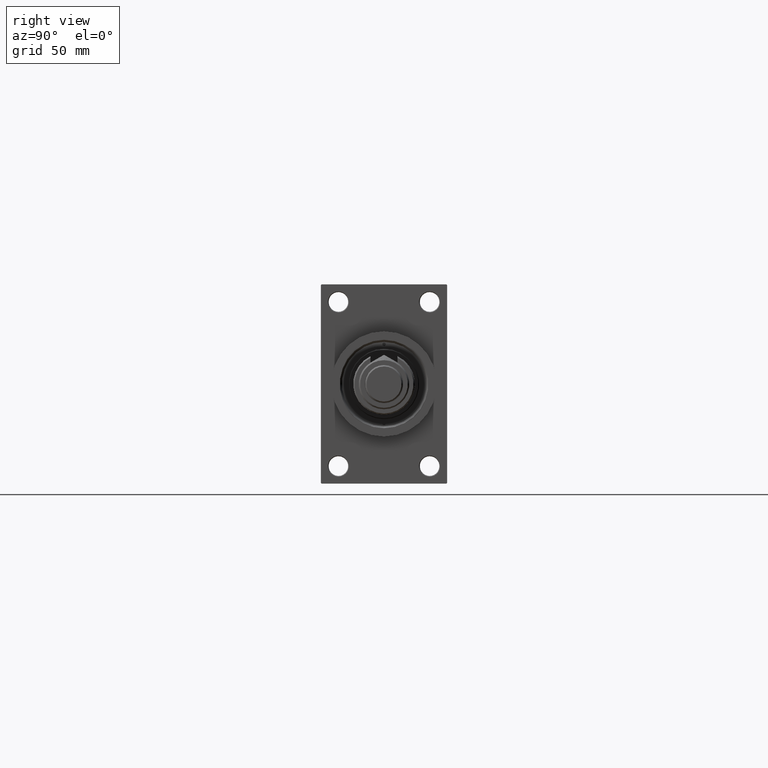
[diagram: clean part render]
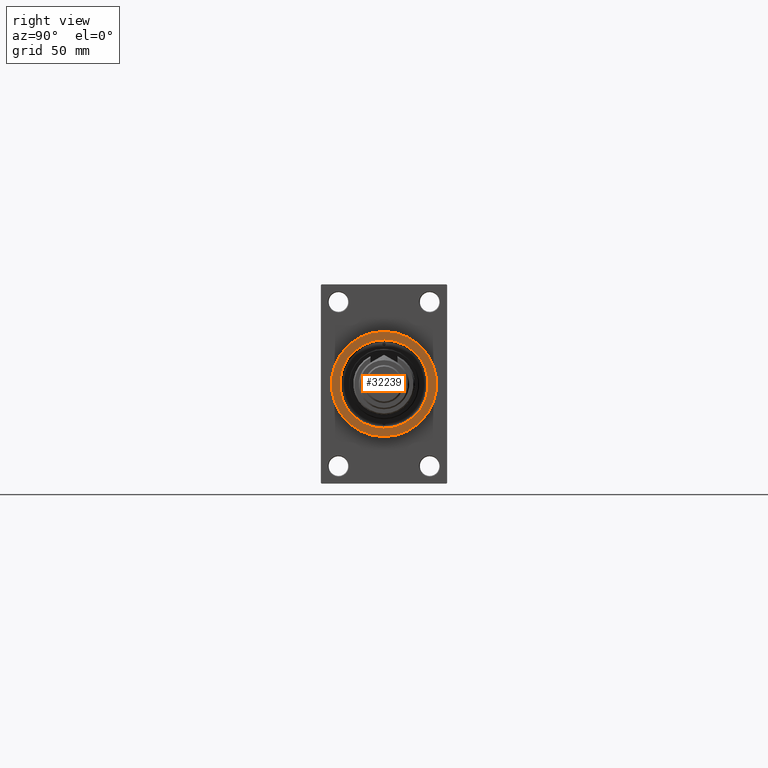
[diagram: same view with one face highlighted and labeled with its STEP entity id]
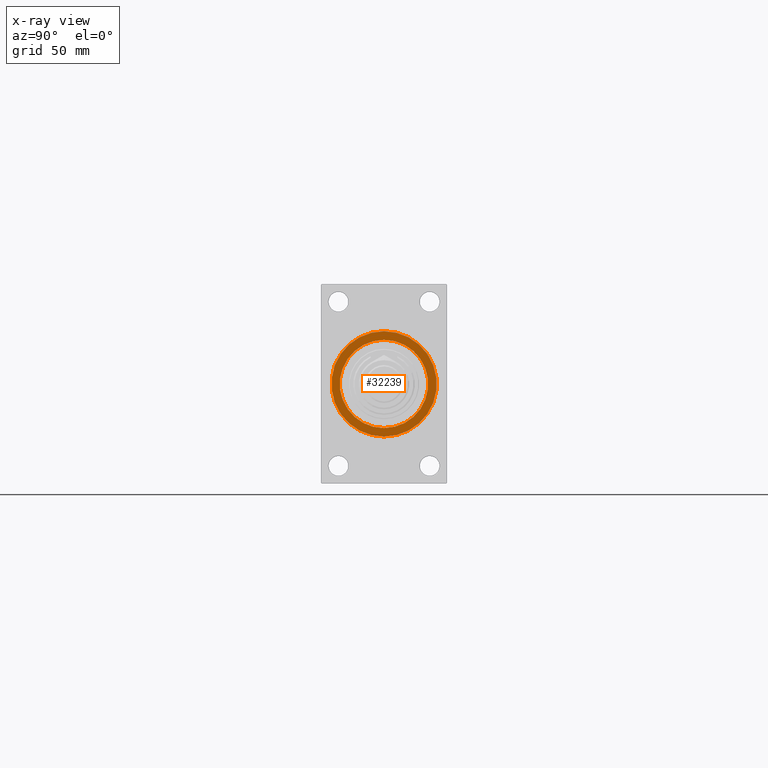
[diagram: x-ray of the same camera — body ghosted, the highlighted face saturated]
A machine part, right view. The second image highlights one B-rep face of the part: STEP entity #32239.
The next image is the same camera in x-ray: the body ghosted, the highlighted face saturated — about 0% of this face is hidden behind the body in this view.
In plain terms, the highlighted planar face has unit normal (1, 0, 0).
Its self-contained STEP definition (entity closure, byte-faithful):
#1951 = EDGE_CURVE ( 'NONE', #8072, #4314, #3866, .T. ) ;
#2128 = PLANE ( 'NONE',  #16983 ) ;
#3866 = CIRCLE ( 'NONE', #49374, 31.50000000000013856 ) ;
#4314 = VERTEX_POINT ( 'NONE', #26563 ) ;
#5264 = CARTESIAN_POINT ( 'NONE',  ( 335.9999999999999432, 0.000000000000000000, 0.000000000000000000 ) ) ;
#5580 = DIRECTION ( 'NONE',  ( 0.000000000000000000, 0.000000000000000000, -1.000000000000000000 ) ) ;
#7510 = AXIS2_PLACEMENT_3D ( 'NONE', #5264, #43459, #12641 ) ;
#8072 = VERTEX_POINT ( 'NONE', #48550 ) ;
#8746 = CARTESIAN_POINT ( 'NONE',  ( 335.9999999999999432, 0.000000000000000000, 0.000000000000000000 ) ) ;
#10629 = EDGE_LOOP ( 'NONE', ( #39286, #39818 ) ) ;
#10703 = EDGE_CURVE ( 'NONE', #4314, #8072, #42003, .T. ) ;
#12641 = DIRECTION ( 'NONE',  ( 0.000000000000000000, 0.000000000000000000, -1.000000000000000000 ) ) ;
#14564 = CARTESIAN_POINT ( 'NONE',  ( 335.9999999999999432, 0.000000000000000000, 0.000000000000000000 ) ) ;
#16457 = VERTEX_POINT ( 'NONE', #39949 ) ;
#16983 = AXIS2_PLACEMENT_3D ( 'NONE', #47949, #25284, #32934 ) ;
#17521 = DIRECTION ( 'NONE',  ( 1.000000000000000000, 0.000000000000000000, 0.000000000000000000 ) ) ;
#20170 = EDGE_LOOP ( 'NONE', ( #36446, #20592 ) ) ;
#20592 = ORIENTED_EDGE ( 'NONE', *, *, #1951, .T. ) ;
#25284 = DIRECTION ( 'NONE',  ( 1.000000000000000000, 0.000000000000000000, 0.000000000000000000 ) ) ;
#25417 = CARTESIAN_POINT ( 'NONE',  ( 335.9999999999999432, 0.000000000000000000, 0.000000000000000000 ) ) ;
#25872 = AXIS2_PLACEMENT_3D ( 'NONE', #25417, #17521, #5580 ) ;
#26563 = CARTESIAN_POINT ( 'NONE',  ( 335.9999999999999432, 0.000000000000000000, -31.50000000000013856 ) ) ;
#29812 = AXIS2_PLACEMENT_3D ( 'NONE', #8746, #36237, #35746 ) ;
#29849 = VERTEX_POINT ( 'NONE', #45661 ) ;
#32239 = ADVANCED_FACE ( 'NONE', ( #32693, #40571 ), #2128, .T. ) ;
#32693 = FACE_BOUND ( 'NONE', #20170, .T. ) ;
#32934 = DIRECTION ( 'NONE',  ( 0.000000000000000000, 0.000000000000000000, -1.000000000000000000 ) ) ;
#33799 = EDGE_CURVE ( 'NONE', #29849, #16457, #47826, .T. ) ;
#34371 = CIRCLE ( 'NONE', #7510, 37.50000000000000711 ) ;
#35746 = DIRECTION ( 'NONE',  ( 0.000000000000000000, 0.000000000000000000, -1.000000000000000000 ) ) ;
#36237 = DIRECTION ( 'NONE',  ( -1.000000000000000000, -0.000000000000000000, -0.000000000000000000 ) ) ;
#36446 = ORIENTED_EDGE ( 'NONE', *, *, #10703, .T. ) ;
#36982 = DIRECTION ( 'NONE',  ( 0.000000000000000000, 0.000000000000000000, -1.000000000000000000 ) ) ;
#39286 = ORIENTED_EDGE ( 'NONE', *, *, #43196, .T. ) ;
#39818 = ORIENTED_EDGE ( 'NONE', *, *, #33799, .T. ) ;
#39949 = CARTESIAN_POINT ( 'NONE',  ( 335.9999999999999432, 0.000000000000000000, 37.50000000000000711 ) ) ;
#40571 = FACE_OUTER_BOUND ( 'NONE', #10629, .T. ) ;
#41041 = DIRECTION ( 'NONE',  ( -1.000000000000000000, -0.000000000000000000, -0.000000000000000000 ) ) ;
#42003 = CIRCLE ( 'NONE', #29812, 31.50000000000013856 ) ;
#43196 = EDGE_CURVE ( 'NONE', #16457, #29849, #34371, .T. ) ;
#43459 = DIRECTION ( 'NONE',  ( 1.000000000000000000, 0.000000000000000000, 0.000000000000000000 ) ) ;
#45661 = CARTESIAN_POINT ( 'NONE',  ( 335.9999999999999432, 4.592425496802575156E-15, -37.50000000000000711 ) ) ;
#47826 = CIRCLE ( 'NONE', #25872, 37.50000000000000711 ) ;
#47949 = CARTESIAN_POINT ( 'NONE',  ( 335.9999999999999432, 0.000000000000000000, 0.000000000000000000 ) ) ;
#48550 = CARTESIAN_POINT ( 'NONE',  ( 335.9999999999999432, 3.857637417314179255E-15, 31.50000000000013856 ) ) ;
#49374 = AXIS2_PLACEMENT_3D ( 'NONE', #14564, #41041, #36982 ) ;